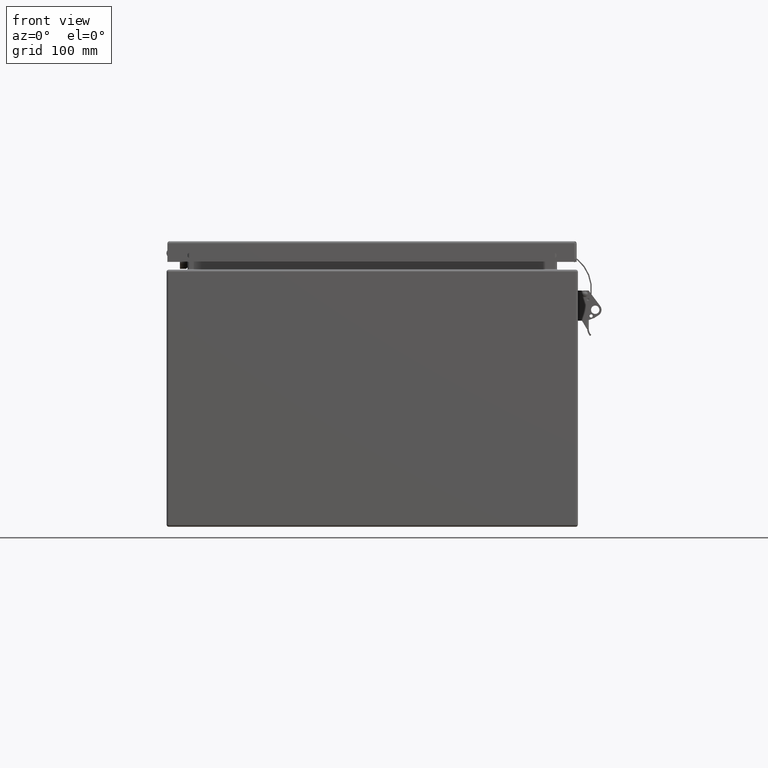
[diagram: clean part render]
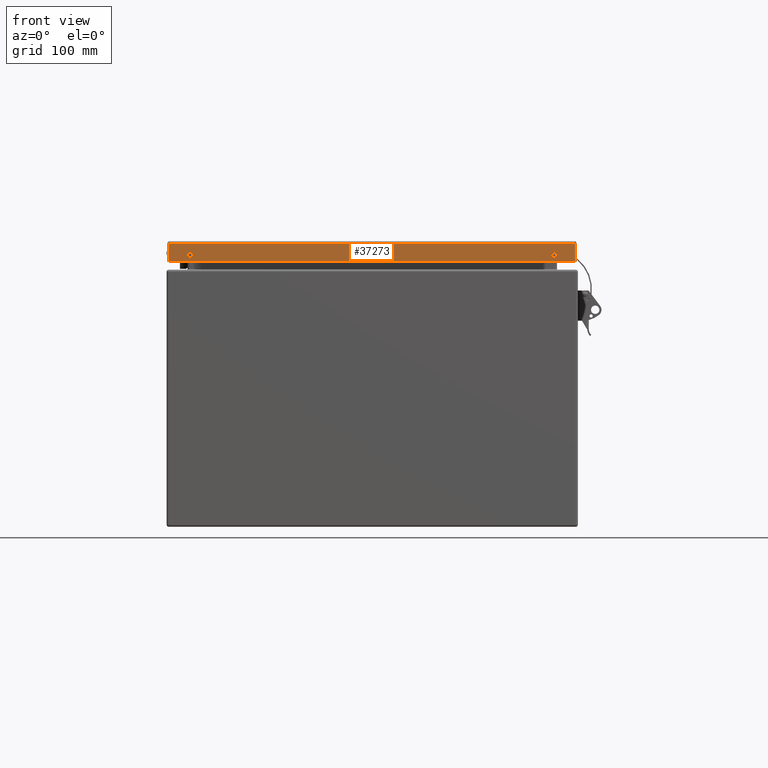
[diagram: same view with one face highlighted and labeled with its STEP entity id]
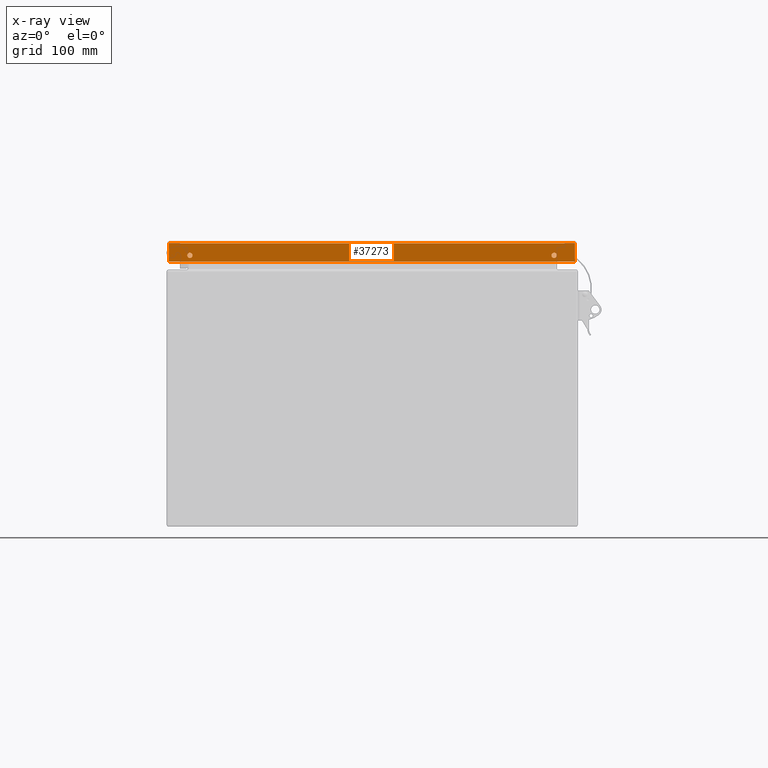
[diagram: x-ray of the same camera — body ghosted, the highlighted face saturated]
A machine part, front view. The second image highlights one B-rep face of the part: STEP entity #37273.
The next image is the same camera in x-ray: the body ghosted, the highlighted face saturated — about 0% of this face is hidden behind the body in this view.
In plain terms, the highlighted planar face has unit normal (-0, -1, 0).
Its self-contained STEP definition (entity closure, byte-faithful):
#687=FACE_BOUND('',#11657,.T.);
#688=FACE_BOUND('',#11658,.T.);
#3813=LINE('',#66089,#6010);
#3817=LINE('',#66109,#6014);
#3825=LINE('',#66181,#6022);
#3826=LINE('',#66182,#6023);
#6010=VECTOR('',#44394,0.393700787401575);
#6014=VECTOR('',#44400,0.393700787401575);
#6022=VECTOR('',#44416,0.393700787401575);
#6023=VECTOR('',#44417,0.393700787401575);
#9339=FACE_OUTER_BOUND('',#11656,.T.);
#11656=EDGE_LOOP('',(#28186,#28187,#28188,#28189));
#11657=EDGE_LOOP('',(#28190));
#11658=EDGE_LOOP('',(#28191));
#13529=CIRCLE('',#40093,0.1015);
#13533=CIRCLE('',#40099,0.1015);
#16031=VERTEX_POINT('',#65672);
#16035=VERTEX_POINT('',#65684);
#16118=VERTEX_POINT('',#65962);
#16128=VERTEX_POINT('',#66088);
#16132=VERTEX_POINT('',#66107);
#16140=VERTEX_POINT('',#66180);
#20294=EDGE_CURVE('',#16031,#16031,#13529,.T.);
#20300=EDGE_CURVE('',#16035,#16035,#13533,.T.);
#20435=EDGE_CURVE('',#16128,#16118,#3813,.T.);
#20441=EDGE_CURVE('',#16132,#16118,#3817,.T.);
#20455=EDGE_CURVE('',#16140,#16132,#3825,.T.);
#20456=EDGE_CURVE('',#16128,#16140,#3826,.T.);
#28186=ORIENTED_EDGE('',*,*,#20441,.F.);
#28187=ORIENTED_EDGE('',*,*,#20455,.F.);
#28188=ORIENTED_EDGE('',*,*,#20456,.F.);
#28189=ORIENTED_EDGE('',*,*,#20435,.T.);
#28190=ORIENTED_EDGE('',*,*,#20294,.T.);
#28191=ORIENTED_EDGE('',*,*,#20300,.T.);
#35982=PLANE('',#40182);
#37273=ADVANCED_FACE('',(#9339,#687,#688),#35982,.T.);
#40093=AXIS2_PLACEMENT_3D('',#65674,#44133,#44134);
#40099=AXIS2_PLACEMENT_3D('',#65686,#44147,#44148);
#40182=AXIS2_PLACEMENT_3D('',#66179,#44414,#44415);
#44133=DIRECTION('center_axis',(2.00801510037679E-19,1.,-5.4875896609275E-15));
#44134=DIRECTION('ref_axis',(-1.,1.88337244464625E-16,1.95350024127947E-14));
#44147=DIRECTION('center_axis',(2.00801510037679E-19,1.,-5.4875896609275E-15));
#44148=DIRECTION('ref_axis',(-1.,1.88337244464625E-16,1.95350024127947E-14));
#44394=DIRECTION('',(-1.,2.00801510037679E-19,-1.08238095347857E-33));
#44400=DIRECTION('',(3.90700048255894E-15,5.4875896609275E-15,1.));
#44414=DIRECTION('center_axis',(-2.00801510037679E-19,-1.,5.4875896609275E-15));
#44415=DIRECTION('ref_axis',(1.,-2.00801510037679E-19,1.08238095347857E-33));
#44416=DIRECTION('',(-1.,0.,0.));
#44417=DIRECTION('',(-2.34420028953537E-14,-5.4875896609275E-15,-1.));
#65672=CARTESIAN_POINT('',(7.18549999999999,-9.9015,-0.497000000000194));
#65674=CARTESIAN_POINT('Origin',(7.08399999999999,-9.9015,-0.497000000000192));
#65684=CARTESIAN_POINT('',(-6.98250000000001,-9.9015,-0.496999999999917));
#65686=CARTESIAN_POINT('Origin',(-7.08400000000001,-9.9015,-0.496999999999915));
#65962=CARTESIAN_POINT('',(-7.905,-9.9015,-0.0310000000000036));
#66088=CARTESIAN_POINT('',(7.90500000000001,-9.9015,-0.0309999999999999));
#66089=CARTESIAN_POINT('',(4.86268492695334E-15,-9.9015,-0.0309999999999999));
#66107=CARTESIAN_POINT('',(-7.905,-9.9015,-0.746999999999999));
#66109=CARTESIAN_POINT('',(-7.905,-9.9015,-0.373621118562498));
#66179=CARTESIAN_POINT('Origin',(4.13055416642037E-15,-9.9015,-0.358242237125028));
#66180=CARTESIAN_POINT('',(7.90499999999998,-9.9015,-0.746999999999999));
#66181=CARTESIAN_POINT('',(7.959,-9.9015,-0.746999999999999));
#66182=CARTESIAN_POINT('',(7.90499999999999,-9.9015,-0.373621118562606));